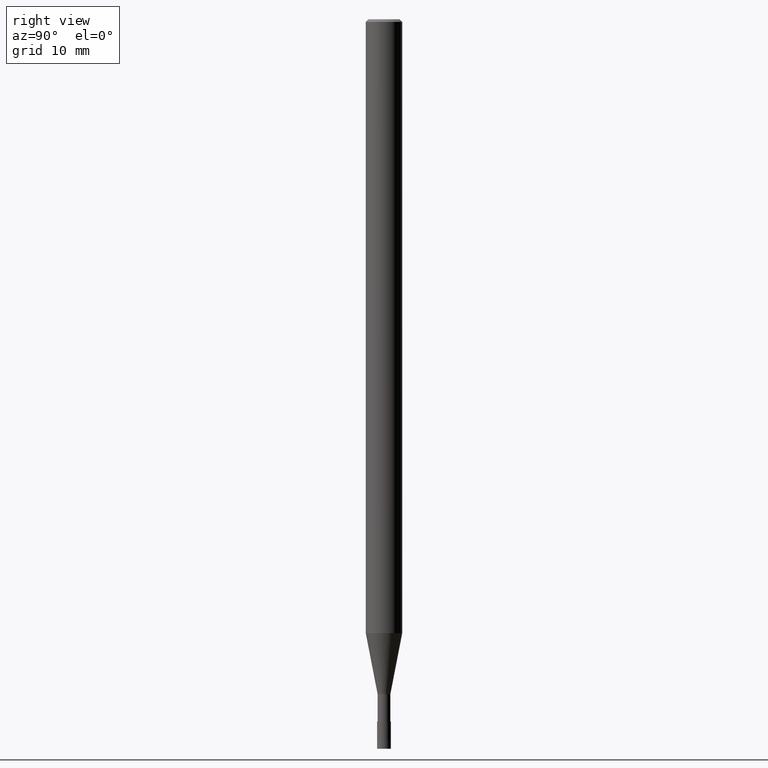
[diagram: clean part render]
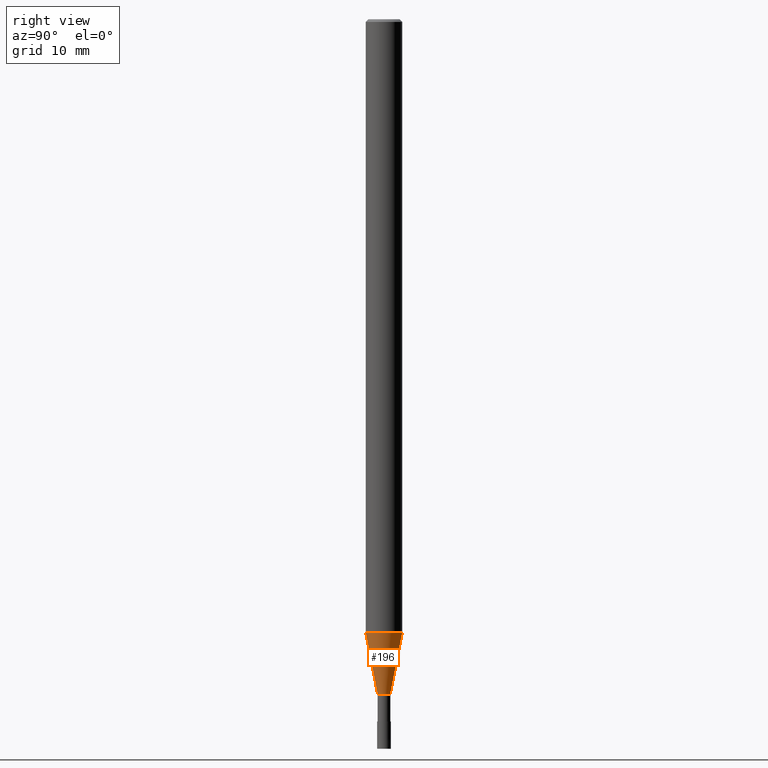
[diagram: same view with one face highlighted and labeled with its STEP entity id]
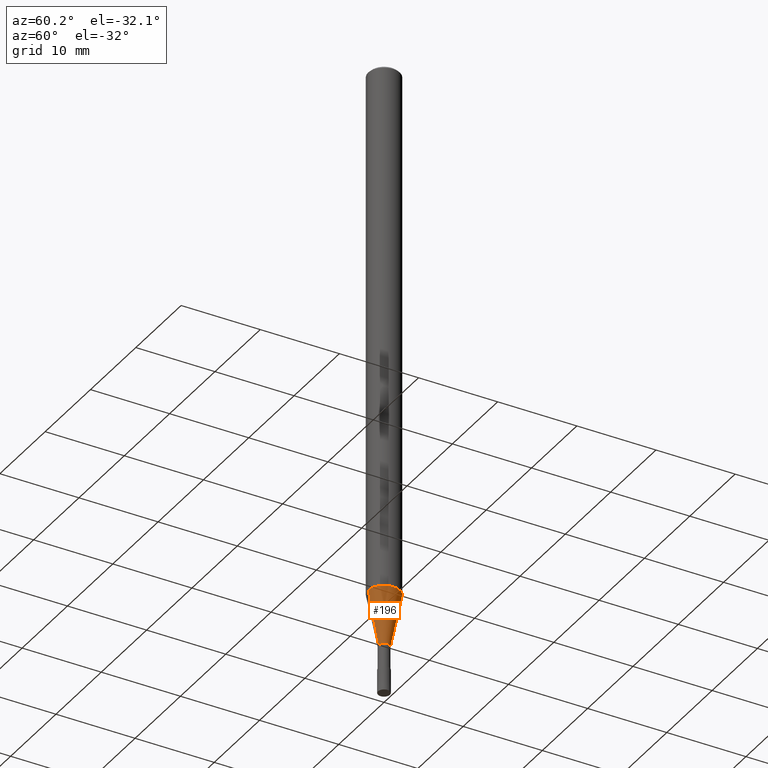
[diagram: same view with one face highlighted and labeled with its STEP entity id]
A machine part, right view. The second image highlights one B-rep face of the part: STEP entity #196.
A second angle (auxiliary view) of the same face is appended — the face is thin or edge-on in the first view.
In plain terms, the highlighted conical surface has half-angle 11 deg.
Its self-contained STEP definition (entity closure, byte-faithful):
#96=EDGE_CURVE('',#110,#180,#233,.T.);
#98=EDGE_CURVE('',#180,#174,#235,.T.);
#110=VERTEX_POINT('',#250);
#114=VERTEX_POINT('',#254);
#152=EDGE_CURVE('',#174,#114,#294,.T.);
#174=VERTEX_POINT('',#319);
#180=VERTEX_POINT('',#326);
#184=EDGE_CURVE('',#110,#114,#331,.T.);
#196=ADVANCED_FACE('',(#345),#346,.T.);
#233=LINE('',#381,#382);
#235=CIRCLE('',#385,0.69995);
#250=CARTESIAN_POINT('',(0.0,1.99995,-67.312));
#254=CARTESIAN_POINT('',(2.44915147732706E-016,-1.99995,-67.312));
#294=LINE('',#459,#460);
#319=CARTESIAN_POINT('',(8.57163217357973E-017,-0.69995,-74.0));
#326=CARTESIAN_POINT('',(0.0,0.69995,-74.0));
#331=CIRCLE('',#506,1.99995);
#345=FACE_OUTER_BOUND('',#522,.T.);
#346=CONICAL_SURFACE('',#523,1.34995,0.191983983430966);
#381=CARTESIAN_POINT('',(-1.65315734734252E-016,1.34995,-70.656));
#382=VECTOR('',#543,1.0);
#385=AXIS2_PLACEMENT_3D('',#544,#545,#546);
#459=CARTESIAN_POINT('',(1.65315734734252E-016,-1.34995,-70.656));
#460=VECTOR('',#617,1.0);
#506=AXIS2_PLACEMENT_3D('',#659,#660,#661);
#522=EDGE_LOOP('',(#680,#681,#682,#683));
#523=AXIS2_PLACEMENT_3D('',#684,#685,#686);
#543=DIRECTION('',(2.33663222250515E-017,-0.19080680213783,-0.981627609767541));
#544=CARTESIAN_POINT('',(0.0,0.0,-74.0));
#545=DIRECTION('',(0.0,0.0,-1.0));
#546=DIRECTION('',(0.0,1.0,0.0));
#617=DIRECTION('',(2.33663222250515E-017,-0.19080680213783,0.981627609767541));
#659=CARTESIAN_POINT('',(0.0,0.0,-67.312));
#660=DIRECTION('',(0.0,0.0,-1.0));
#661=DIRECTION('',(0.0,1.0,0.0));
#680=ORIENTED_EDGE('',*,*,#96,.F.);
#681=ORIENTED_EDGE('',*,*,#184,.T.);
#682=ORIENTED_EDGE('',*,*,#152,.F.);
#683=ORIENTED_EDGE('',*,*,#98,.F.);
#684=CARTESIAN_POINT('',(0.0,0.0,-70.656));
#685=DIRECTION('',(-0.0,-0.0,1.0));
#686=DIRECTION('',(0.0,1.0,0.0));